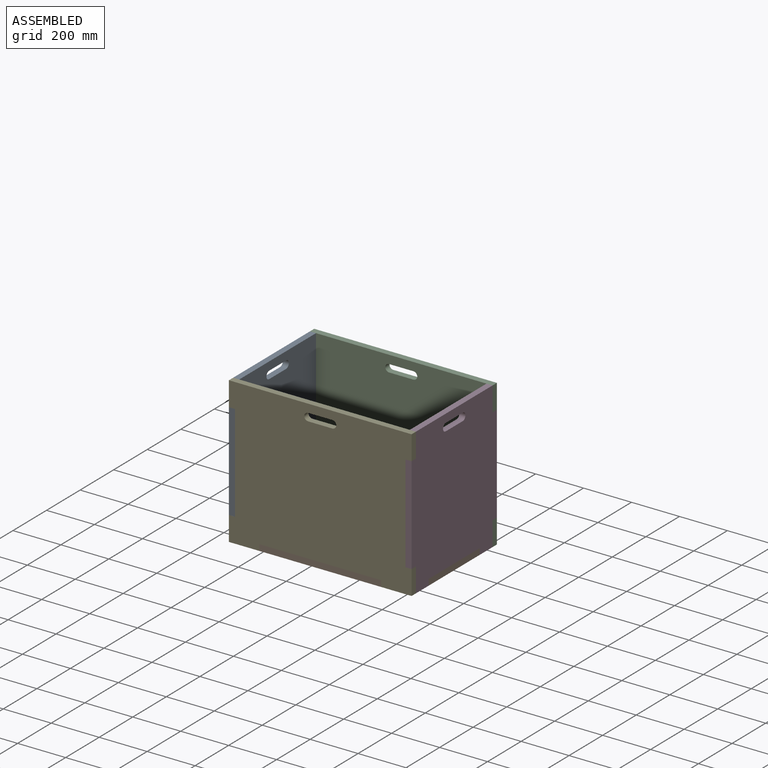
[diagram: assembled view]
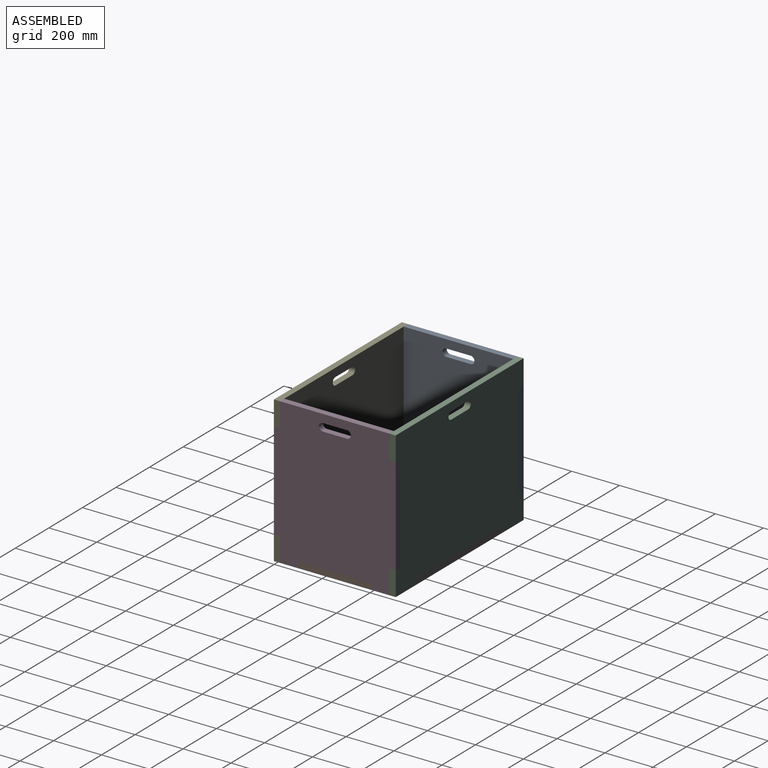
[diagram: assembled view, second angle]
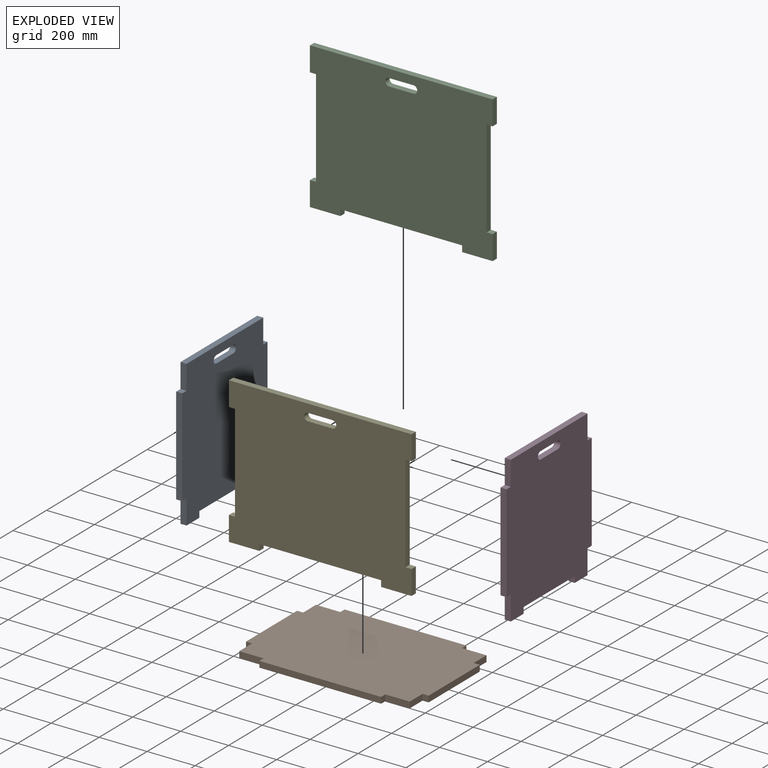
[diagram: exploded view]
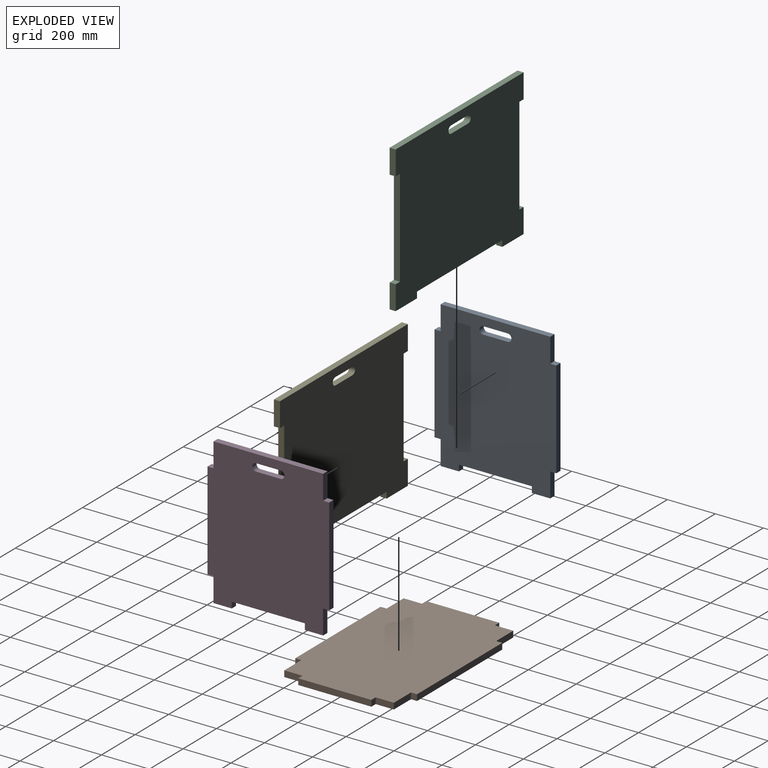
[diagram: exploded view, second angle]
ASSEMBLY  parts=5 mates=4
PART A: 22 faces, bbox 508x609.6x25.4 mm
  f0: plane 76.2x25.4mm, normal (0,-1,0), area 1935.5mm2, adj f1,f19,f20,f21
  f1: plane 25.4x25.4mm, normal (1,0,0), area 645.2mm2, adj f0,f2,f20,f21
  f2: plane 304.8x25.4mm, normal (0,-1,0), area 7741.9mm2, adj f1,f3,f20,f21
  f3: plane 25.4x25.4mm, normal (-1,0,0), area 645.2mm2, adj f2,f4,f20,f21
  f4: plane 76.2x25.4mm, normal (0,-1,0), area 1935.5mm2, adj f3,f5,f20,f21
  f5: plane 101.6x25.4mm, normal (1,0,0), area 2580.6mm2, adj f4,f6,f20,f21
  f6: plane 25.4x25.4mm, normal (0,-1,0), area 645.2mm2, adj f5,f7,f20,f21
  f7: plane 406.4x25.4mm, normal (1,0,0), area 10322.6mm2, adj f6,f8,f20,f21
  f8: plane 25.4x25.4mm, normal (0,1,0), area 645.2mm2, adj f7,f9,f20,f21
  f9: plane 101.6x25.4mm, normal (1,0,0), area 2580.6mm2, adj f8,f10,f20,f21
  f10: plane 457.2x25.4mm, normal (0,1,0), area 11612.9mm2, adj f9,f11,f20,f21
  f11: plane 101.6x25.4mm, normal (-1,0,0), area 2580.6mm2, adj f10,f12,f20,f21
  f12: plane 25.4x25.4mm, normal (0,1,0), area 645.2mm2, adj f11,f13,f20,f21
  f13: plane 406.4x25.4mm, normal (-1,0,0), area 10322.6mm2, adj f12,f14,f20,f21
  f14: plane 25.4x25.4mm, normal (0,-1,0), area 645.2mm2, adj f13,f19,f20,f21
  f15: cylinder r=15.88mm len=31.75mm, axis (0,0,-1), area 1266.8mm2, adj f16,f18,f20,f21
  f16: plane 101.6x25.4mm, normal (0,-1,0), area 2580.6mm2, adj f15,f17,f20,f21
  f17: cylinder r=15.88mm len=31.75mm, axis (0,0,-1), area 1266.8mm2, adj f16,f18,f20,f21
  f18: plane 101.6x25.4mm, normal (0,1,0), area 2580.6mm2, adj f15,f17,f20,f21
  f19: plane 101.6x25.4mm, normal (-1,0,0), area 2580.6mm2, adj f0,f14,f20,f21
  f20: plane 609.6x508mm, normal (0,0,1), area 287594.8mm2, adj f0,f1,f2,f3,f4,f5,f6,f7
  f21: plane 609.6x508mm, normal (0,0,-1), area 287594.8mm2, adj f0,f1,f2,f3,f4,f5,f6,f7
PART B: 22 faces, bbox 762x508x25.4 mm
  f0: plane 76.2x25.4mm, normal (1,0,0), area 1935.5mm2, adj f1,f19,f20,f21
  f1: plane 25.4x25.4mm, normal (0,-1,0), area 645.2mm2, adj f0,f2,f20,f21
  f2: plane 304.8x25.4mm, normal (1,0,0), area 7741.9mm2, adj f1,f3,f20,f21
  f3: plane 25.4x25.4mm, normal (0,1,0), area 645.2mm2, adj f2,f4,f20,f21
  f4: plane 76.2x25.4mm, normal (1,0,0), area 1935.5mm2, adj f3,f5,f20,f21
  f5: plane 101.6x25.4mm, normal (0,1,0), area 2580.6mm2, adj f4,f6,f20,f21
  f6: plane 25.4x25.4mm, normal (1,0,0), area 645.2mm2, adj f5,f7,f20,f21
  f7: plane 508x25.4mm, normal (0,1,0), area 12903.2mm2, adj f6,f8,f20,f21
  f8: plane 25.4x25.4mm, normal (-1,0,0), area 645.2mm2, adj f7,f9,f20,f21
  f9: plane 101.6x25.4mm, normal (0,1,0), area 2580.6mm2, adj f8,f10,f20,f21
  f10: plane 76.2x25.4mm, normal (-1,0,0), area 1935.5mm2, adj f9,f11,f20,f21
  f11: plane 25.4x25.4mm, normal (0,1,0), area 645.2mm2, adj f10,f12,f20,f21
  f12: plane 304.69x25.4mm, normal (-1,0,0), area 7739.2mm2, adj f11,f13,f20,f21
  f13: plane 25.4x25.4mm, normal (0,-1,0), area 645.2mm2, adj f12,f14,f20,f21
  f14: plane 76.2x25.4mm, normal (-1,0,0), area 1935.5mm2, adj f13,f15,f20,f21
  f15: plane 101.6x25.4mm, normal (0,-1,0), area 2580.6mm2, adj f14,f16,f20,f21
  f16: plane 25.4x25.4mm, normal (-1,0,0), area 645.2mm2, adj f15,f17,f20,f21
  f17: plane 508x25.4mm, normal (0,-1,0), area 12903.2mm2, adj f16,f18,f20,f21
  f18: plane 25.4x25.4mm, normal (1,0,0), area 645.2mm2, adj f17,f19,f20,f21
  f19: plane 101.6x25.4mm, normal (0,-1,0), area 2580.6mm2, adj f0,f18,f20,f21
  f20: plane 762x508mm, normal (0,0,1), area 366449.5mm2, adj f0,f1,f2,f3,f4,f5,f6,f7
  f21: plane 762x508mm, normal (0,0,-1), area 366449.5mm2, adj f0,f1,f2,f3,f4,f5,f6,f7
PART C: 22 faces, bbox 762x609.6x25.4 mm
  f0: plane 406.4x25.4mm, normal (1,0,0), area 10322.6mm2, adj f1,f19,f20,f21
  f1: plane 25.4x25.4mm, normal (0,-1,0), area 645.2mm2, adj f0,f2,f20,f21
  f2: plane 101.6x25.4mm, normal (1,0,0), area 2580.6mm2, adj f1,f3,f20,f21
  f3: plane 762x25.4mm, normal (0,1,0), area 19354.8mm2, adj f2,f4,f20,f21
  f4: plane 101.6x25.4mm, normal (-1,0,0), area 2580.6mm2, adj f3,f5,f20,f21
  f5: plane 25.4x25.4mm, normal (0,-1,0), area 645.2mm2, adj f4,f6,f20,f21
  f6: plane 406.4x25.4mm, normal (-1,0,0), area 10322.6mm2, adj f5,f7,f20,f21
  f7: plane 25.4x25.4mm, normal (0,1,0), area 645.2mm2, adj f6,f8,f20,f21
  f8: plane 101.6x25.4mm, normal (-1,0,0), area 2580.6mm2, adj f7,f9,f20,f21
  f9: plane 127x25.4mm, normal (0,-1,0), area 3225.8mm2, adj f8,f10,f20,f21
  f10: plane 25.4x25.4mm, normal (1,0,0), area 645.2mm2, adj f9,f11,f20,f21
  f11: plane 508x25.4mm, normal (0,-1,0), area 12903.2mm2, adj f10,f12,f20,f21
  f12: plane 25.4x25.4mm, normal (-1,0,0), area 645.2mm2, adj f11,f13,f20,f21
  f13: plane 127x25.4mm, normal (0,-1,0), area 3225.8mm2, adj f12,f14,f20,f21
  f14: plane 101.6x25.4mm, normal (1,0,0), area 2580.6mm2, adj f13,f19,f20,f21
  f15: cylinder r=15.88mm len=31.75mm, axis (0,0,-1), area 1266.8mm2, adj f16,f18,f20,f21
  f16: plane 101.6x25.4mm, normal (0,-1,0), area 2580.6mm2, adj f15,f17,f20,f21
  f17: cylinder r=15.88mm len=31.75mm, axis (0,0,-1), area 1266.8mm2, adj f16,f18,f20,f21
  f18: plane 101.6x25.4mm, normal (0,1,0), area 2580.6mm2, adj f15,f17,f20,f21
  f19: plane 25.4x25.4mm, normal (0,1,0), area 645.2mm2, adj f0,f14,f20,f21
  f20: plane 762x609.6mm, normal (0,0,1), area 426949.3mm2, adj f0,f1,f2,f3,f4,f5,f6,f7
  f21: plane 762x609.6mm, normal (0,0,-1), area 426949.3mm2, adj f0,f1,f2,f3,f4,f5,f6,f7
PART D: same geometry as A
PART E: same geometry as C
PLACE A rot(axis=(0.58,0.58,0.58),120deg) t=(-381,820.42,-60.8)mm
PLACE B t=(-274.9,395.61,-25.4)mm fixed
PLACE C rot(axis=(1,0,0),90deg) t=(-274.9,254,-328.47)mm
PLACE D rot(axis=(0.58,-0.58,-0.58),120deg) t=(381,-820.36,-60.8)mm
PLACE E rot(axis=(1,0,0),90deg) t=(-274.9,-228.6,-328.47)mm
MATE fastened B.f20 <-> A.f2  axis (0,0,1) through (-381,0.05,0)mm
MATE fastened B.f20 <-> D.f2  axis (0,0,1) through (381,0,0)mm
MATE fastened B.f20 <-> C.f11  axis (0,0,1) through (0,254,0)mm
MATE fastened B.f20 <-> E.f11  axis (0,0,1) through (0,-254,0)mm
